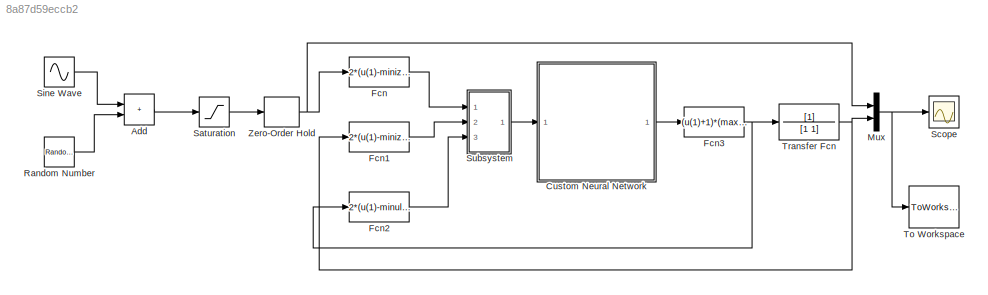
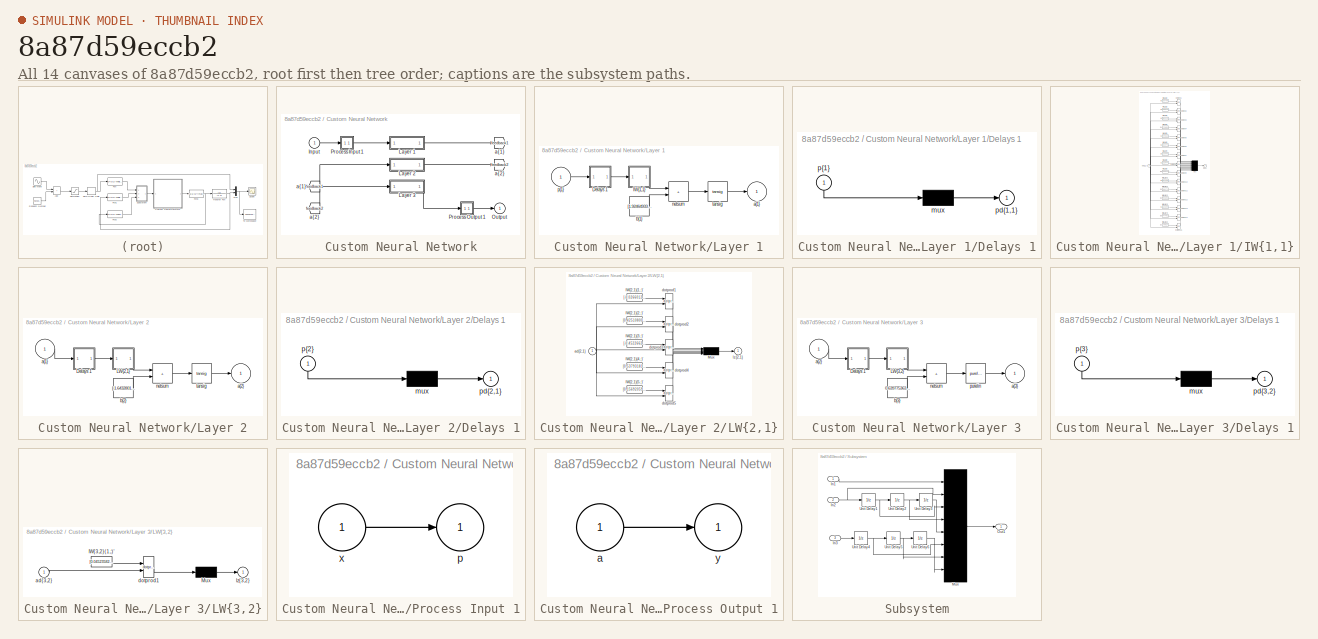
[diagram: thumbnail index - all 14 canvases of the model, root first then tree order]
MODEL slx_8a87d59eccb2
KIND model
CONFIG AbsTol = auto
CONFIG EnableMultiTasking = off
CONFIG FixedStep = auto
CONFIG MaxStep = auto
CONFIG MinStep = auto
CONFIG RelTol = 1e-3
CONFIG SampleTimeConstraint = Unconstrained
CONFIG Solver = VariableStepAuto
CONFIG SolverName = VariableStepAuto
CONFIG StartTime = 0.0
CONFIG StopTime = 500
BLOCK [Sum] Add
  IconShape = rectangular
  Ports = [2, 1]
BLOCK [SubSystem] Custom Neural Network
  Ports = [1, 1]
  RequestExecContextInheritance = off
BLOCK [From] Custom Neural Network/ a{1} 
  GotoTag = feedback1
BLOCK [From] Custom Neural Network/ a{2} 
  GotoTag = feedback2
BLOCK [Inport] Custom Neural Network/Input
  PortDimensions = 8
  SampleTime = 0.1
BLOCK [SubSystem] Custom Neural Network/Layer 1
  Ports = [1, 1]
  RequestExecContextInheritance = off
BLOCK [SubSystem] Custom Neural Network/Layer 1/Delays 1
  Ports = [1, 1]
  RequestExecContextInheritance = off
BLOCK [Mux] Custom Neural Network/Layer 1/Delays 1/mux
  Inputs = 1
  Ports = [1, 1]
BLOCK [Outport] Custom Neural Network/Layer 1/Delays 1/pd{1,1}
BLOCK [Inport] Custom Neural Network/Layer 1/Delays 1/p{1}
  NameLocation = left
  PortDimensions = 8
  SampleTime = 0.1
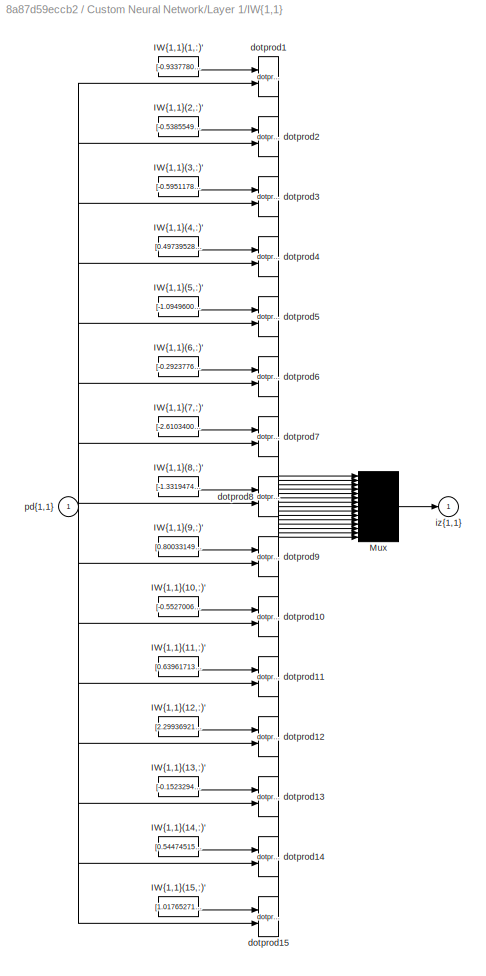
BLOCK [SubSystem] Custom Neural Network/Layer 1/IW{1,1}
  Ports = [1, 1]
  RequestExecContextInheritance = off
BLOCK [Constant] Custom Neural Network/Layer 1/IW{1,1}/IW{1,1}(1,:)'
  Value = [-0.933778073111207529422017614706419408321380615234375;0.018376063407069813393501789278161595575511455535888671875;0.471865422283804125669348650262691080570220947265625;-0.791519516379552090512561335344798862934112548828125;-0.93409681211684958412888590828515589237213134765625;-0.2157188312021099119153433321116608567535877227783203125;-0.0152541668481134436163859646740093012340366840362548828125;...<+57ch>
BLOCK [Constant] Custom Neural Network/Layer 1/IW{1,1}/IW{1,1}(10,:)'
  Value = [-0.552700611048439593986358886468224227428436279296875;-0.1620271119368017209705357117854873649775981903076171875;-0.08028466468916251042031717588542960584163665771484375;-0.5934272278036587522365152835845947265625;-0.57110097699273609794801132011343725025653839111328125;-0.3662275990752725807197975882445462048053741455078125;-0.4226869464290121669591826503165066242218017578125;-1.299418214877908...<+37ch>
BLOCK [Constant] Custom Neural Network/Layer 1/IW{1,1}/IW{1,1}(11,:)'
  Value = [0.63961713156581578854087410945794545114040374755859375;-1.6598824283578517135850916019990108907222747802734375;-0.1181431229472357513632374548251391388475894927978515625;1.0501706781847659488704493924160487949848175048828125;0.0097992962743730059604896354130687541328370571136474609375;-0.2715259981585429471806492074392735958099365234375;-0.5998016392042295752418112897430546581745147705078125;0.9...<+53ch>
BLOCK [Constant] Custom Neural Network/Layer 1/IW{1,1}/IW{1,1}(12,:)'
  Value = [2.299369214430380115032903631799854338169097900390625;-2.671366624389510224801824733731336891651153564453125;-0.54990464444138009714180270748329348862171173095703125;0.32580519093406967723325351471430622041225433349609375;0.176004345121854199884836589262704364955425262451171875;0.5662327769693291656949440948665142059326171875;0.183122252413946917659615110096638090908527374267578125;-0.26151781819...<+43ch>
BLOCK [Constant] Custom Neural Network/Layer 1/IW{1,1}/IW{1,1}(13,:)'
  Value = [-0.1523294090525962596327502751591964624822139739990234375;0.56486623313374384469653932683286257088184356689453125;0.08924246568069153784374947235846775583922863006591796875;0.11924753288448908250529711949639022350311279296875;0.462782135955949858185931589105166494846343994140625;0.3286147060160686805829755030572414398193359375;1.285287846284155488518763377214781939983367919921875;-0.770305713844...<+42ch>
BLOCK [Constant] Custom Neural Network/Layer 1/IW{1,1}/IW{1,1}(14,:)'
  Value = [0.544745150641440023520090107922442257404327392578125;0.0456262036751368393883154794821166433393955230712890625;-0.8196031305606024108811880068969912827014923095703125;-0.64136504922871584444266090940800495445728302001953125;-0.0921664999507489646202174071731860749423503875732421875;-0.46337432381935272918127566299517638981342315673828125;1.3103190517721212682289433359983377158641815185546875;0.5...<+53ch>
BLOCK [Constant] Custom Neural Network/Layer 1/IW{1,1}/IW{1,1}(15,:)'
  Value = [1.0176527186147972248164705888484604656696319580078125;-0.1965692005733447322857188055422739125788211822509765625;0.286365768123361175145902279837173409759998321533203125;-0.74179928045361320787520753583521582186222076416015625;1.2512770580546843657288036411046050488948822021484375;-0.1556612356553027931571620001705014146864414215087890625;-0.27040696944118580713478650068282149732112884521484375;...<+54ch>
BLOCK [Constant] Custom Neural Network/Layer 1/IW{1,1}/IW{1,1}(2,:)'
  Value = [-0.53855490823243357123573105127434246242046356201171875;0.451691780006615639653233529315912164747714996337890625;-0.9979490471675258600470215242239646613597869873046875;-0.82241849046058490557697950862348079681396484375;1.0583249311651423685276540709310211241245269775390625;0.303619826304774520497886669545550830662250518798828125;-0.1684562849870660239393060919610434211790561676025390625;0.56097...<+43ch>
BLOCK [Constant] Custom Neural Network/Layer 1/IW{1,1}/IW{1,1}(3,:)'
  Value = [-0.59511784069885986792058929495397023856639862060546875;-0.91757775383399320379140817749430425465106964111328125;-0.4179521724884327493754199167597107589244842529296875;-0.93553839583695175274868915948900394141674041748046875;0.5358318992746242681590729262097738683223724365234375;-0.73158992237955577930819117682403884828090667724609375;-0.3165676963823520484453410972491838037967681884765625;0.71...<+51ch>
BLOCK [Constant] Custom Neural Network/Layer 1/IW{1,1}/IW{1,1}(4,:)'
  Value = [0.4973952820448646061635145088075660169124603271484375;0.99808812567273108573573381363530643284320831298828125;0.61768052416924368319683935624198056757450103759765625;-1.0819425746424868872708202616195194423198699951171875;0.2431723921193313653343892610791954211890697479248046875;-0.341754472216186766519996353963506408035755157470703125;0.50684044331113320414061718111042864620685577392578125;0.57...<+52ch>
BLOCK [Constant] Custom Neural Network/Layer 1/IW{1,1}/IW{1,1}(5,:)'
  Value = [-1.09496004665815771517145549296401441097259521484375;-0.55981120366210868066758621353073976933956146240234375;0.64320609775027282051240717919426970183849334716796875;-0.6286846424746588279930392673122696578502655029296875;-0.309078348992274209994235434351139701902866363525390625;-0.7635506937008826877644196429173462092876434326171875;0.458364839427809422911508363540633581578731536865234375;0.377...<+52ch>
BLOCK [Constant] Custom Neural Network/Layer 1/IW{1,1}/IW{1,1}(6,:)'
  Value = [-0.29237767323212138226296019638539291918277740478515625;-0.6000705637019965177358926666784100234508514404296875;-0.93492466668879659064117504385649226605892181396484375;-0.7471669119232962064103276134119369089603424072265625;-0.80756255129900467171211175809730775654315948486328125;0.5552876130146409128229834095691330730915069580078125;-0.2689423449055923232009490675409324467182159423828125;-1.06...<+50ch>
BLOCK [Constant] Custom Neural Network/Layer 1/IW{1,1}/IW{1,1}(7,:)'
  Value = [-2.6103400078630532021861654357053339481353759765625;2.708745873775729506860443507321178913116455078125;0.25722002228211249263978288581711240112781524658203125;-0.2365635213368186828830630474840290844440460205078125;-0.6540152986343372720767774808336980640888214111328125;0.5096483999733505410034695159993134438991546630859375;-0.039306791130044378690389095254431595094501972198486328125;0.172144036...<+47ch>
BLOCK [Constant] Custom Neural Network/Layer 1/IW{1,1}/IW{1,1}(8,:)'
  Value = [-1.3319474540846056864751290049753151834011077880859375;0.5416151718617869814664800287573598325252532958984375;-0.53501605735856394563398907848750241100788116455078125;-0.247327212800598827957543335287482477724552154541015625;1.00777380839760954955863780924119055271148681640625;-0.06270162954883817807427703883149661123752593994140625;-0.251036526250670355420169244098360650241374969482421875;-0.17...<+54ch>
BLOCK [Constant] Custom Neural Network/Layer 1/IW{1,1}/IW{1,1}(9,:)'
  Value = [0.80033149939248915405443085546721704304218292236328125;0.4736487278957717261818061160738579928874969482421875;-0.972493708525495659245052593178115785121917724609375;-0.4219897215241370513894025862100534141063690185546875;-0.3694794840657962264884872638504020869731903076171875;-0.11042234789135001171711536471775616519153118133544921875;-0.9490554601249014954333915738970972597599029541015625;-0.43...<+52ch>
BLOCK [Mux] Custom Neural Network/Layer 1/IW{1,1}/Mux
  Inputs = 15
  Ports = [15, 1]
BLOCK [Reference] Custom Neural Network/Layer 1/IW{1,1}/dotprod1  REF=neural/Weight Functions/dotprod
  Ports = [2, 1]
  SourceBlock = neural/Weight Functions/dotprod
  SourceProductBaseCode = NN
  SourceType = DOTPROD
BLOCK [Reference] Custom Neural Network/Layer 1/IW{1,1}/dotprod10  REF=neural/Weight Functions/dotprod
  Ports = [2, 1]
  SourceBlock = neural/Weight Functions/dotprod
  SourceProductBaseCode = NN
  SourceType = DOTPROD
BLOCK [Reference] Custom Neural Network/Layer 1/IW{1,1}/dotprod11  REF=neural/Weight Functions/dotprod
  Ports = [2, 1]
  SourceBlock = neural/Weight Functions/dotprod
  SourceProductBaseCode = NN
  SourceType = DOTPROD
BLOCK [Reference] Custom Neural Network/Layer 1/IW{1,1}/dotprod12  REF=neural/Weight Functions/dotprod
  Ports = [2, 1]
  SourceBlock = neural/Weight Functions/dotprod
  SourceProductBaseCode = NN
  SourceType = DOTPROD
BLOCK [Reference] Custom Neural Network/Layer 1/IW{1,1}/dotprod13  REF=neural/Weight Functions/dotprod
  Ports = [2, 1]
  SourceBlock = neural/Weight Functions/dotprod
  SourceProductBaseCode = NN
  SourceType = DOTPROD
BLOCK [Reference] Custom Neural Network/Layer 1/IW{1,1}/dotprod14  REF=neural/Weight Functions/dotprod
  Ports = [2, 1]
  SourceBlock = neural/Weight Functions/dotprod
  SourceProductBaseCode = NN
  SourceType = DOTPROD
BLOCK [Reference] Custom Neural Network/Layer 1/IW{1,1}/dotprod15  REF=neural/Weight Functions/dotprod
  Ports = [2, 1]
  SourceBlock = neural/Weight Functions/dotprod
  SourceProductBaseCode = NN
  SourceType = DOTPROD
BLOCK [Reference] Custom Neural Network/Layer 1/IW{1,1}/dotprod2  REF=neural/Weight Functions/dotprod
  Ports = [2, 1]
  SourceBlock = neural/Weight Functions/dotprod
  SourceProductBaseCode = NN
  SourceType = DOTPROD
BLOCK [Reference] Custom Neural Network/Layer 1/IW{1,1}/dotprod3  REF=neural/Weight Functions/dotprod
  Ports = [2, 1]
  SourceBlock = neural/Weight Functions/dotprod
  SourceProductBaseCode = NN
  SourceType = DOTPROD
BLOCK [Reference] Custom Neural Network/Layer 1/IW{1,1}/dotprod4  REF=neural/Weight Functions/dotprod
  Ports = [2, 1]
  SourceBlock = neural/Weight Functions/dotprod
  SourceProductBaseCode = NN
  SourceType = DOTPROD
BLOCK [Reference] Custom Neural Network/Layer 1/IW{1,1}/dotprod5  REF=neural/Weight Functions/dotprod
  Ports = [2, 1]
  SourceBlock = neural/Weight Functions/dotprod
  SourceProductBaseCode = NN
  SourceType = DOTPROD
BLOCK [Reference] Custom Neural Network/Layer 1/IW{1,1}/dotprod6  REF=neural/Weight Functions/dotprod
  Ports = [2, 1]
  SourceBlock = neural/Weight Functions/dotprod
  SourceProductBaseCode = NN
  SourceType = DOTPROD
BLOCK [Reference] Custom Neural Network/Layer 1/IW{1,1}/dotprod7  REF=neural/Weight Functions/dotprod
  Ports = [2, 1]
  SourceBlock = neural/Weight Functions/dotprod
  SourceProductBaseCode = NN
  SourceType = DOTPROD
BLOCK [Reference] Custom Neural Network/Layer 1/IW{1,1}/dotprod8  REF=neural/Weight Functions/dotprod
  Ports = [2, 1]
  SourceBlock = neural/Weight Functions/dotprod
  SourceProductBaseCode = NN
  SourceType = DOTPROD
BLOCK [Reference] Custom Neural Network/Layer 1/IW{1,1}/dotprod9  REF=neural/Weight Functions/dotprod
  Ports = [2, 1]
  SourceBlock = neural/Weight Functions/dotprod
  SourceProductBaseCode = NN
  SourceType = DOTPROD
BLOCK [Outport] Custom Neural Network/Layer 1/IW{1,1}/iz{1,1}
BLOCK [Inport] Custom Neural Network/Layer 1/IW{1,1}/pd{1,1}
  PortDimensions = 8
  SampleTime = 0.1
BLOCK [Outport] Custom Neural Network/Layer 1/a{1}
  InitialOutput = [0;0;0;0;0;0;0;0;0;0;0;0;0;0;0]
BLOCK [Constant] Custom Neural Network/Layer 1/b{1}
  Value = [1.9246493367445045574726236736751161515712738037109375;1.78062354798745214878863407648168504238128662109375;1.53757780477061967161489519639872014522552490234375;-0.70013945658792697823713524485356174409389495849609375;1.1200303070538086824825541043537668883800506591796875;0.417728302728863798432001885885256342589855194091796875;0.000975406543799094464218535360799933187081478536128997802734375;-0....<+463ch>
BLOCK [Sum] Custom Neural Network/Layer 1/netsum
  IconShape = rectangular
  InputSameDT = on
  Inputs = 2
  OutDataTypeStr = Inherit: Same as first input
  Ports = [2, 1]
  SaturateOnIntegerOverflow = on
BLOCK [Inport] Custom Neural Network/Layer 1/p{1}
  PortDimensions = 8
  SampleTime = 0.1
BLOCK [Reference] Custom Neural Network/Layer 1/tansig  REF=neural/Transfer Functions/tansig
  Ports = [1, 1]
  SourceBlock = neural/Transfer Functions/tansig
  SourceProductBaseCode = NN
  SourceType = TANSIG
BLOCK [SubSystem] Custom Neural Network/Layer 2
  Ports = [1, 1]
  RequestExecContextInheritance = off
BLOCK [SubSystem] Custom Neural Network/Layer 2/Delays 1
  Ports = [1, 1]
  RequestExecContextInheritance = off
BLOCK [Mux] Custom Neural Network/Layer 2/Delays 1/mux
  Inputs = 1
  Ports = [1, 1]
BLOCK [Outport] Custom Neural Network/Layer 2/Delays 1/pd{2,1}
BLOCK [Inport] Custom Neural Network/Layer 2/Delays 1/p{2}
  NameLocation = left
  PortDimensions = 15
  SampleTime = 0.1
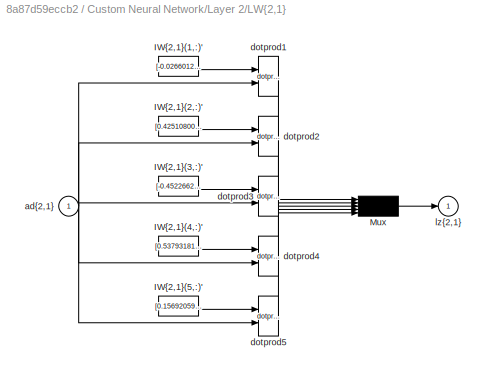
BLOCK [SubSystem] Custom Neural Network/Layer 2/LW{2,1}
  Ports = [1, 1]
  RequestExecContextInheritance = off
BLOCK [Constant] Custom Neural Network/Layer 2/LW{2,1}/IW{2,1}(1,:)'
  Value = [-0.026601293599026597236356650455491035245358943939208984375;0.177045648733017590981120292781270109117031097412109375;-0.04281766834552651335155104561636107973754405975341796875;-0.423641716232266818398244367926963604986667633056640625;0.54756979531695570972971154333208687603473663330078125;-0.154323253854050823630217337267822585999965667724609375;0.30383608074002810273128716289647854864597320556...<+452ch>
BLOCK [Constant] Custom Neural Network/Layer 2/LW{2,1}/IW{2,1}(2,:)'
  Value = [0.425108006990808251490676639150478877127170562744140625;-0.43105016774564164361294160698889754712581634521484375;-0.08236237469758904417016509569293702952563762664794921875;0.15081020827287694441309895410086028277873992919921875;-0.261290524280429037329298580516478978097438812255859375;-0.296945282827475953713047829296556301414966583251953125;2.37831774372727000610439063166268169879913330078125;...<+449ch>
BLOCK [Constant] Custom Neural Network/Layer 2/LW{2,1}/IW{2,1}(3,:)'
  Value = [-0.4522662882145065399441818954073823988437652587890625;0.478140090941149953351896328967995941638946533203125;0.0161987543720501052380011941522752749733626842498779296875;-0.2226017126746915597568232669800636358559131622314453125;0.32893553715487089394997610725113190710544586181640625;0.2788427568923836918912684268434531986713409423828125;2.379923084889296713839712538174353539943695068359375;-0.2...<+453ch>
BLOCK [Constant] Custom Neural Network/Layer 2/LW{2,1}/IW{2,1}(4,:)'
  Value = [0.537931818229362423977590879076160490512847900390625;0.284744998764544232638940002289018593728542327880859375;-0.35555314108177060727911111825960688292980194091796875;0.41327330246902638233308380222297273576259613037109375;0.330898566574540586859853874557302333414554595947265625;-0.316644955493334323559651011237292550504207611083984375;0.362930117598035117953969574955408461391925811767578125;0.6...<+455ch>
BLOCK [Constant] Custom Neural Network/Layer 2/LW{2,1}/IW{2,1}(5,:)'
  Value = [0.156920594448007211241247205180115997791290283203125;-0.6457746932997678879218028669129125773906707763671875;-0.21766501193350984433294570408179424703121185302734375;0.430177060110132292169993206698563881218433380126953125;0.035147120029813426478337845537680550478398799896240234375;-0.61298377745537246941154307933175005018711090087890625;-0.258800786261255522102686654761782847344875335693359375;...<+466ch>
BLOCK [Mux] Custom Neural Network/Layer 2/LW{2,1}/Mux
  Inputs = 5
  Ports = [5, 1]
BLOCK [Inport] Custom Neural Network/Layer 2/LW{2,1}/ad{2,1}
  PortDimensions = 15
  SampleTime = 0.1
BLOCK [Reference] Custom Neural Network/Layer 2/LW{2,1}/dotprod1  REF=neural/Weight Functions/dotprod
  Ports = [2, 1]
  SourceBlock = neural/Weight Functions/dotprod
  SourceProductBaseCode = NN
  SourceType = DOTPROD
BLOCK [Reference] Custom Neural Network/Layer 2/LW{2,1}/dotprod2  REF=neural/Weight Functions/dotprod
  Ports = [2, 1]
  SourceBlock = neural/Weight Functions/dotprod
  SourceProductBaseCode = NN
  SourceType = DOTPROD
BLOCK [Reference] Custom Neural Network/Layer 2/LW{2,1}/dotprod3  REF=neural/Weight Functions/dotprod
  Ports = [2, 1]
  SourceBlock = neural/Weight Functions/dotprod
  SourceProductBaseCode = NN
  SourceType = DOTPROD
BLOCK [Reference] Custom Neural Network/Layer 2/LW{2,1}/dotprod4  REF=neural/Weight Functions/dotprod
  Ports = [2, 1]
  SourceBlock = neural/Weight Functions/dotprod
  SourceProductBaseCode = NN
  SourceType = DOTPROD
BLOCK [Reference] Custom Neural Network/Layer 2/LW{2,1}/dotprod5  REF=neural/Weight Functions/dotprod
  Ports = [2, 1]
  SourceBlock = neural/Weight Functions/dotprod
  SourceProductBaseCode = NN
  SourceType = DOTPROD
BLOCK [Outport] Custom Neural Network/Layer 2/LW{2,1}/lz{2,1}
BLOCK [Inport] Custom Neural Network/Layer 2/a{1} 
  PortDimensions = 15
  SampleTime = 0.1
BLOCK [Outport] Custom Neural Network/Layer 2/a{2}
  InitialOutput = [0;0;0;0;0]
BLOCK [Constant] Custom Neural Network/Layer 2/b{2}
  Value = [-1.6432801384211612738539542988291941583156585693359375;-0.4310791384734737885509048282983712852001190185546875;0.1641655884849668456393345650212722830474376678466796875;0.75916528034939212421505771999363787472248077392578125;1.4362251930359584140006745656137354671955108642578125]
BLOCK [Sum] Custom Neural Network/Layer 2/netsum
  IconShape = rectangular
  InputSameDT = on
  Inputs = 2
  OutDataTypeStr = Inherit: Same as first input
  Ports = [2, 1]
  SaturateOnIntegerOverflow = on
BLOCK [Reference] Custom Neural Network/Layer 2/tansig  REF=neural/Transfer Functions/tansig
  Ports = [1, 1]
  SourceBlock = neural/Transfer Functions/tansig
  SourceProductBaseCode = NN
  SourceType = TANSIG
BLOCK [SubSystem] Custom Neural Network/Layer 3
  Ports = [1, 1]
  RequestExecContextInheritance = off
BLOCK [SubSystem] Custom Neural Network/Layer 3/Delays 1
  Ports = [1, 1]
  RequestExecContextInheritance = off
BLOCK [Mux] Custom Neural Network/Layer 3/Delays 1/mux
  Inputs = 1
  Ports = [1, 1]
BLOCK [Outport] Custom Neural Network/Layer 3/Delays 1/pd{3,2}
BLOCK [Inport] Custom Neural Network/Layer 3/Delays 1/p{3}
  NameLocation = left
  PortDimensions = 5
  SampleTime = 0.1
BLOCK [SubSystem] Custom Neural Network/Layer 3/LW{3,2}
  Ports = [1, 1]
  RequestExecContextInheritance = off
BLOCK [Constant] Custom Neural Network/Layer 3/LW{3,2}/IW{3,2}(1,:)'
  Value = [0.04523582210053379848435639587478362955152988433837890625;-3.24050813024093287140203756280243396759033203125;-3.44193835776470979936902949702925980091094970703125;-0.815860117439761278745891104335896670818328857421875;0.2550734718565361713871197935077361762523651123046875]
BLOCK [Mux] Custom Neural Network/Layer 3/LW{3,2}/Mux
  Inputs = 1
  Ports = [1, 1]
BLOCK [Inport] Custom Neural Network/Layer 3/LW{3,2}/ad{3,2}
  PortDimensions = 5
  SampleTime = 0.1
BLOCK [Reference] Custom Neural Network/Layer 3/LW{3,2}/dotprod1  REF=neural/Weight Functions/dotprod
  Ports = [2, 1]
  SourceBlock = neural/Weight Functions/dotprod
  SourceProductBaseCode = NN
  SourceType = DOTPROD
BLOCK [Outport] Custom Neural Network/Layer 3/LW{3,2}/lz{3,2}
BLOCK [Inport] Custom Neural Network/Layer 3/a{2} 
  PortDimensions = 5
  SampleTime = 0.1
BLOCK [Outport] Custom Neural Network/Layer 3/a{3}
  InitialOutput = 0
BLOCK [Constant] Custom Neural Network/Layer 3/b{3}
  Value = 0.63977536387984201837753062136471271514892578125
BLOCK [Sum] Custom Neural Network/Layer 3/netsum
  IconShape = rectangular
  InputSameDT = on
  Inputs = 2
  OutDataTypeStr = Inherit: Same as first input
  Ports = [2, 1]
  SaturateOnIntegerOverflow = on
BLOCK [Reference] Custom Neural Network/Layer 3/purelin  REF=neural/Transfer Functions/purelin
  Ports = [1, 1]
  SourceBlock = neural/Transfer Functions/purelin
  SourceProductBaseCode = NN
  SourceType = PURELIN
BLOCK [Outport] Custom Neural Network/Output
  InitialOutput = 0
BLOCK [SubSystem] Custom Neural Network/Process Input 1
  Ports = [1, 1]
  RequestExecContextInheritance = off
BLOCK [Outport] Custom Neural Network/Process Input 1/p
  PortDimensions = 8
  SampleTime = 0.1
BLOCK [Inport] Custom Neural Network/Process Input 1/x
  PortDimensions = 8
  SampleTime = 0.1
BLOCK [SubSystem] Custom Neural Network/Process Output 1
  Ports = [1, 1]
  RequestExecContextInheritance = off
BLOCK [Inport] Custom Neural Network/Process Output 1/a
  PortDimensions = 1
  SampleTime = 0.1
BLOCK [Outport] Custom Neural Network/Process Output 1/y
  PortDimensions = 1
  SampleTime = 0.1
BLOCK [Goto] Custom Neural Network/a{1}
  GotoTag = feedback1
BLOCK [Goto] Custom Neural Network/a{2}
  GotoTag = feedback2
BLOCK [Fcn] Fcn
  Expr = 2*(u(1)-minizlaz)/(maxizlaz-minizlaz)-1
BLOCK [Fcn] Fcn1
  Expr = 2*(u(1)-minizlaz)/(maxizlaz-minizlaz)-1
BLOCK [Fcn] Fcn2
  Expr = 2*(u(1)-minulaz)/(maxulaz-minulaz)-1
BLOCK [Fcn] Fcn3
  Expr = (u(1)+1)*(maxulaz-minulaz)/2+minulaz
BLOCK [Mux] Mux
  DisplayOption = bar
  Inputs = 2
  Ports = [2, 1]
BLOCK [RandomNumber] Random Number
  SampleTime = 0.1
BLOCK [Saturate] Saturation
  LowerLimit = -5
  UpperLimit = 5
BLOCK [Scope] Scope
  Floating = off
  NumInputPorts = 1
  Ports = [1]
  ScopeSpecificationString = Simulink.scopes.TimeScopeBlockCfg('CurrentConfiguration', extmgr.ConfigurationSet(extmgr.Configuration('Core','General UI',true),extmgr.Configuration('Core','Source UI',true),extmgr.Configuration('Sources','WiredSimulink',true),extmgr.Configuration('Visuals','Time Domain',true,'SerializedDisplays',{struct('MinYLimReal','-6.59219','MaxYLimReal','7.20612','YLabelReal','','MinYLimMag','0.00000','MaxY...<+1402ch>
BLOCK [Sin] Sine Wave
  Amplitude = 4
  Frequency = 0.025
  Ports = [0, 1]
  SampleTime = 0.1
BLOCK [SubSystem] Subsystem
  Ports = [3, 1]
  RequestExecContextInheritance = off
BLOCK [Inport] Subsystem/In1
BLOCK [Inport] Subsystem/In2
  Port = 2
BLOCK [Inport] Subsystem/In3
  Port = 3
BLOCK [Mux] Subsystem/Mux
  DisplayOption = bar
  Inputs = 8
  Ports = [8, 1]
BLOCK [Outport] Subsystem/Out1
BLOCK [UnitDelay] Subsystem/Unit Delay1
  HasFrameUpgradeWarning = on
  SampleTime = -1
BLOCK [UnitDelay] Subsystem/Unit Delay2
  HasFrameUpgradeWarning = on
  SampleTime = -1
BLOCK [UnitDelay] Subsystem/Unit Delay3
  HasFrameUpgradeWarning = on
  SampleTime = -1
BLOCK [UnitDelay] Subsystem/Unit Delay4
  HasFrameUpgradeWarning = on
  SampleTime = -1
BLOCK [UnitDelay] Subsystem/Unit Delay5
  HasFrameUpgradeWarning = on
  SampleTime = -1
BLOCK [UnitDelay] Subsystem/Unit Delay6
  HasFrameUpgradeWarning = on
  SampleTime = -1
BLOCK [ToWorkspace] To Workspace
  MaxDataPoints = inf
  Ports = [1]
  SampleTime = -1
  Save2DSignal = 2-D array (concatenate along first dimension)
  VariableName = konacna
BLOCK [TransferFcn] Transfer Fcn
BLOCK [ZeroOrderHold] Zero-Order Hold
  SampleTime = 0.1
LINE Add:1 -> Saturation:1
LINE Custom Neural Network/ a{1} :1 -> Custom Neural Network/Layer 2:1
LINE Custom Neural Network/ a{2} :1 -> Custom Neural Network/Layer 3:1
LINE Custom Neural Network/Input:1 -> Custom Neural Network/Process Input 1:1
LINE Custom Neural Network/Layer 1/Delays 1/mux:1 -> Custom Neural Network/Layer 1/Delays 1/pd{1,1}:1
LINE Custom Neural Network/Layer 1/Delays 1/p{1}:1 -> Custom Neural Network/Layer 1/Delays 1/mux:1
LINE Custom Neural Network/Layer 1/Delays 1:1 -> Custom Neural Network/Layer 1/IW{1,1}:1
LINE Custom Neural Network/Layer 1/IW{1,1}/IW{1,1}(1,:)':1 -> Custom Neural Network/Layer 1/IW{1,1}/dotprod1:1
LINE Custom Neural Network/Layer 1/IW{1,1}/IW{1,1}(10,:)':1 -> Custom Neural Network/Layer 1/IW{1,1}/dotprod10:1
LINE Custom Neural Network/Layer 1/IW{1,1}/IW{1,1}(11,:)':1 -> Custom Neural Network/Layer 1/IW{1,1}/dotprod11:1
LINE Custom Neural Network/Layer 1/IW{1,1}/IW{1,1}(12,:)':1 -> Custom Neural Network/Layer 1/IW{1,1}/dotprod12:1
LINE Custom Neural Network/Layer 1/IW{1,1}/IW{1,1}(13,:)':1 -> Custom Neural Network/Layer 1/IW{1,1}/dotprod13:1
LINE Custom Neural Network/Layer 1/IW{1,1}/IW{1,1}(14,:)':1 -> Custom Neural Network/Layer 1/IW{1,1}/dotprod14:1
LINE Custom Neural Network/Layer 1/IW{1,1}/IW{1,1}(15,:)':1 -> Custom Neural Network/Layer 1/IW{1,1}/dotprod15:1
LINE Custom Neural Network/Layer 1/IW{1,1}/IW{1,1}(2,:)':1 -> Custom Neural Network/Layer 1/IW{1,1}/dotprod2:1
LINE Custom Neural Network/Layer 1/IW{1,1}/IW{1,1}(3,:)':1 -> Custom Neural Network/Layer 1/IW{1,1}/dotprod3:1
LINE Custom Neural Network/Layer 1/IW{1,1}/IW{1,1}(4,:)':1 -> Custom Neural Network/Layer 1/IW{1,1}/dotprod4:1
LINE Custom Neural Network/Layer 1/IW{1,1}/IW{1,1}(5,:)':1 -> Custom Neural Network/Layer 1/IW{1,1}/dotprod5:1
LINE Custom Neural Network/Layer 1/IW{1,1}/IW{1,1}(6,:)':1 -> Custom Neural Network/Layer 1/IW{1,1}/dotprod6:1
LINE Custom Neural Network/Layer 1/IW{1,1}/IW{1,1}(7,:)':1 -> Custom Neural Network/Layer 1/IW{1,1}/dotprod7:1
LINE Custom Neural Network/Layer 1/IW{1,1}/IW{1,1}(8,:)':1 -> Custom Neural Network/Layer 1/IW{1,1}/dotprod8:1
LINE Custom Neural Network/Layer 1/IW{1,1}/IW{1,1}(9,:)':1 -> Custom Neural Network/Layer 1/IW{1,1}/dotprod9:1
LINE Custom Neural Network/Layer 1/IW{1,1}/Mux:1 -> Custom Neural Network/Layer 1/IW{1,1}/iz{1,1}:1
LINE Custom Neural Network/Layer 1/IW{1,1}/dotprod10:1 -> Custom Neural Network/Layer 1/IW{1,1}/Mux:10
LINE Custom Neural Network/Layer 1/IW{1,1}/dotprod11:1 -> Custom Neural Network/Layer 1/IW{1,1}/Mux:11
LINE Custom Neural Network/Layer 1/IW{1,1}/dotprod12:1 -> Custom Neural Network/Layer 1/IW{1,1}/Mux:12
LINE Custom Neural Network/Layer 1/IW{1,1}/dotprod13:1 -> Custom Neural Network/Layer 1/IW{1,1}/Mux:13
LINE Custom Neural Network/Layer 1/IW{1,1}/dotprod14:1 -> Custom Neural Network/Layer 1/IW{1,1}/Mux:14
LINE Custom Neural Network/Layer 1/IW{1,1}/dotprod15:1 -> Custom Neural Network/Layer 1/IW{1,1}/Mux:15
LINE Custom Neural Network/Layer 1/IW{1,1}/dotprod1:1 -> Custom Neural Network/Layer 1/IW{1,1}/Mux:1
LINE Custom Neural Network/Layer 1/IW{1,1}/dotprod2:1 -> Custom Neural Network/Layer 1/IW{1,1}/Mux:2
LINE Custom Neural Network/Layer 1/IW{1,1}/dotprod3:1 -> Custom Neural Network/Layer 1/IW{1,1}/Mux:3
LINE Custom Neural Network/Layer 1/IW{1,1}/dotprod4:1 -> Custom Neural Network/Layer 1/IW{1,1}/Mux:4
LINE Custom Neural Network/Layer 1/IW{1,1}/dotprod5:1 -> Custom Neural Network/Layer 1/IW{1,1}/Mux:5
LINE Custom Neural Network/Layer 1/IW{1,1}/dotprod6:1 -> Custom Neural Network/Layer 1/IW{1,1}/Mux:6
LINE Custom Neural Network/Layer 1/IW{1,1}/dotprod7:1 -> Custom Neural Network/Layer 1/IW{1,1}/Mux:7
LINE Custom Neural Network/Layer 1/IW{1,1}/dotprod8:1 -> Custom Neural Network/Layer 1/IW{1,1}/Mux:8
LINE Custom Neural Network/Layer 1/IW{1,1}/dotprod9:1 -> Custom Neural Network/Layer 1/IW{1,1}/Mux:9
NET Custom Neural Network/Layer 1/IW{1,1}/pd{1,1}:1 -> Custom Neural Network/Layer 1/IW{1,1}/dotprod10:2, Custom Neural Network/Layer 1/IW{1,1}/dotprod11:2, Custom Neural Network/Layer 1/IW{1,1}/dotprod12:2, Custom Neural Network/Layer 1/IW{1,1}/dotprod13:2, Custom Neural Network/Layer 1/IW{1,1}/dotprod14:2, Custom Neural Network/Layer 1/IW{1,1}/dotprod15:2, Custom Neural Network/Layer 1/IW{1,1}/dotprod1:2, Custom Neural Network/Layer 1/IW{1,1}/dotprod2:2, Custom Neural Network/Layer 1/IW{1,1}/dotprod3:2, Custom Neural Network/Layer 1/IW{1,1}/dotprod4:2, Custom Neural Network/Layer 1/IW{1,1}/dotprod5:2, Custom Neural Network/Layer 1/IW{1,1}/dotprod6:2, Custom Neural Network/Layer 1/IW{1,1}/dotprod7:2, Custom Neural Network/Layer 1/IW{1,1}/dotprod8:2, Custom Neural Network/Layer 1/IW{1,1}/dotprod9:2
LINE Custom Neural Network/Layer 1/IW{1,1}:1 -> Custom Neural Network/Layer 1/netsum:1
LINE Custom Neural Network/Layer 1/b{1}:1 -> Custom Neural Network/Layer 1/netsum:2
LINE Custom Neural Network/Layer 1/netsum:1 -> Custom Neural Network/Layer 1/tansig:1
LINE Custom Neural Network/Layer 1/p{1}:1 -> Custom Neural Network/Layer 1/Delays 1:1
LINE Custom Neural Network/Layer 1/tansig:1 -> Custom Neural Network/Layer 1/a{1}:1
LINE Custom Neural Network/Layer 1:1 -> Custom Neural Network/a{1}:1
LINE Custom Neural Network/Layer 2/Delays 1/mux:1 -> Custom Neural Network/Layer 2/Delays 1/pd{2,1}:1
LINE Custom Neural Network/Layer 2/Delays 1/p{2}:1 -> Custom Neural Network/Layer 2/Delays 1/mux:1
LINE Custom Neural Network/Layer 2/Delays 1:1 -> Custom Neural Network/Layer 2/LW{2,1}:1
LINE Custom Neural Network/Layer 2/LW{2,1}/IW{2,1}(1,:)':1 -> Custom Neural Network/Layer 2/LW{2,1}/dotprod1:1
LINE Custom Neural Network/Layer 2/LW{2,1}/IW{2,1}(2,:)':1 -> Custom Neural Network/Layer 2/LW{2,1}/dotprod2:1
LINE Custom Neural Network/Layer 2/LW{2,1}/IW{2,1}(3,:)':1 -> Custom Neural Network/Layer 2/LW{2,1}/dotprod3:1
LINE Custom Neural Network/Layer 2/LW{2,1}/IW{2,1}(4,:)':1 -> Custom Neural Network/Layer 2/LW{2,1}/dotprod4:1
LINE Custom Neural Network/Layer 2/LW{2,1}/IW{2,1}(5,:)':1 -> Custom Neural Network/Layer 2/LW{2,1}/dotprod5:1
LINE Custom Neural Network/Layer 2/LW{2,1}/Mux:1 -> Custom Neural Network/Layer 2/LW{2,1}/lz{2,1}:1
NET Custom Neural Network/Layer 2/LW{2,1}/ad{2,1}:1 -> Custom Neural Network/Layer 2/LW{2,1}/dotprod1:2, Custom Neural Network/Layer 2/LW{2,1}/dotprod2:2, Custom Neural Network/Layer 2/LW{2,1}/dotprod3:2, Custom Neural Network/Layer 2/LW{2,1}/dotprod4:2, Custom Neural Network/Layer 2/LW{2,1}/dotprod5:2
LINE Custom Neural Network/Layer 2/LW{2,1}/dotprod1:1 -> Custom Neural Network/Layer 2/LW{2,1}/Mux:1
LINE Custom Neural Network/Layer 2/LW{2,1}/dotprod2:1 -> Custom Neural Network/Layer 2/LW{2,1}/Mux:2
LINE Custom Neural Network/Layer 2/LW{2,1}/dotprod3:1 -> Custom Neural Network/Layer 2/LW{2,1}/Mux:3
LINE Custom Neural Network/Layer 2/LW{2,1}/dotprod4:1 -> Custom Neural Network/Layer 2/LW{2,1}/Mux:4
LINE Custom Neural Network/Layer 2/LW{2,1}/dotprod5:1 -> Custom Neural Network/Layer 2/LW{2,1}/Mux:5
LINE Custom Neural Network/Layer 2/LW{2,1}:1 -> Custom Neural Network/Layer 2/netsum:1
LINE Custom Neural Network/Layer 2/a{1} :1 -> Custom Neural Network/Layer 2/Delays 1:1
LINE Custom Neural Network/Layer 2/b{2}:1 -> Custom Neural Network/Layer 2/netsum:2
LINE Custom Neural Network/Layer 2/netsum:1 -> Custom Neural Network/Layer 2/tansig:1
LINE Custom Neural Network/Layer 2/tansig:1 -> Custom Neural Network/Layer 2/a{2}:1
LINE Custom Neural Network/Layer 2:1 -> Custom Neural Network/a{2}:1
LINE Custom Neural Network/Layer 3/Delays 1/mux:1 -> Custom Neural Network/Layer 3/Delays 1/pd{3,2}:1
LINE Custom Neural Network/Layer 3/Delays 1/p{3}:1 -> Custom Neural Network/Layer 3/Delays 1/mux:1
LINE Custom Neural Network/Layer 3/Delays 1:1 -> Custom Neural Network/Layer 3/LW{3,2}:1
LINE Custom Neural Network/Layer 3/LW{3,2}/IW{3,2}(1,:)':1 -> Custom Neural Network/Layer 3/LW{3,2}/dotprod1:1
LINE Custom Neural Network/Layer 3/LW{3,2}/Mux:1 -> Custom Neural Network/Layer 3/LW{3,2}/lz{3,2}:1
LINE Custom Neural Network/Layer 3/LW{3,2}/ad{3,2}:1 -> Custom Neural Network/Layer 3/LW{3,2}/dotprod1:2
LINE Custom Neural Network/Layer 3/LW{3,2}/dotprod1:1 -> Custom Neural Network/Layer 3/LW{3,2}/Mux:1
LINE Custom Neural Network/Layer 3/LW{3,2}:1 -> Custom Neural Network/Layer 3/netsum:1
LINE Custom Neural Network/Layer 3/a{2} :1 -> Custom Neural Network/Layer 3/Delays 1:1
LINE Custom Neural Network/Layer 3/b{3}:1 -> Custom Neural Network/Layer 3/netsum:2
LINE Custom Neural Network/Layer 3/netsum:1 -> Custom Neural Network/Layer 3/purelin:1
LINE Custom Neural Network/Layer 3/purelin:1 -> Custom Neural Network/Layer 3/a{3}:1
LINE Custom Neural Network/Layer 3:1 -> Custom Neural Network/Process Output 1:1
LINE Custom Neural Network/Process Input 1/x:1 -> Custom Neural Network/Process Input 1/p:1
LINE Custom Neural Network/Process Input 1:1 -> Custom Neural Network/Layer 1:1
LINE Custom Neural Network/Process Output 1/a:1 -> Custom Neural Network/Process Output 1/y:1
LINE Custom Neural Network/Process Output 1:1 -> Custom Neural Network/Output:1
LINE Custom Neural Network:1 -> Fcn3:1
LINE Fcn1:1 -> Subsystem:2
LINE Fcn2:1 -> Subsystem:3
NET Fcn3:1 -> Fcn2:1, Transfer Fcn:1
LINE Fcn:1 -> Subsystem:1
NET Mux:1 -> Scope:1, To Workspace:1
LINE Random Number:1 -> Add:2
LINE Saturation:1 -> Zero-Order Hold:1
LINE Sine Wave:1 -> Add:1
LINE Subsystem/In1:1 -> Subsystem/Mux:1
NET Subsystem/In2:1 -> Subsystem/Mux:2, Subsystem/Unit Delay1:1
LINE Subsystem/In3:1 -> Subsystem/Unit Delay4:1
LINE Subsystem/Mux:1 -> Subsystem/Out1:1
NET Subsystem/Unit Delay1:1 -> Subsystem/Mux:3, Subsystem/Unit Delay2:1
NET Subsystem/Unit Delay2:1 -> Subsystem/Mux:4, Subsystem/Unit Delay3:1
LINE Subsystem/Unit Delay3:1 -> Subsystem/Mux:5
NET Subsystem/Unit Delay4:1 -> Subsystem/Mux:6, Subsystem/Unit Delay5:1
NET Subsystem/Unit Delay5:1 -> Subsystem/Mux:7, Subsystem/Unit Delay6:1
LINE Subsystem/Unit Delay6:1 -> Subsystem/Mux:8
LINE Subsystem:1 -> Custom Neural Network:1
NET Transfer Fcn:1 -> Fcn1:1, Mux:2
NET Zero-Order Hold:1 -> Fcn:1, Mux:1
note: NET lines group one-source signal fan-out (src -> all destinations, sorted); 1:1 wires keep LINE
